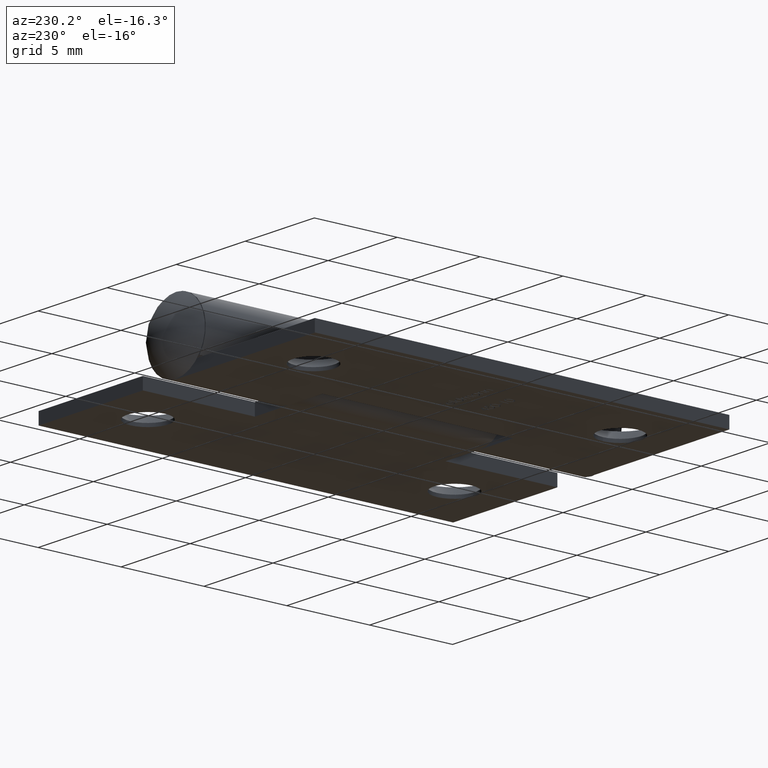
[diagram: clean part render]
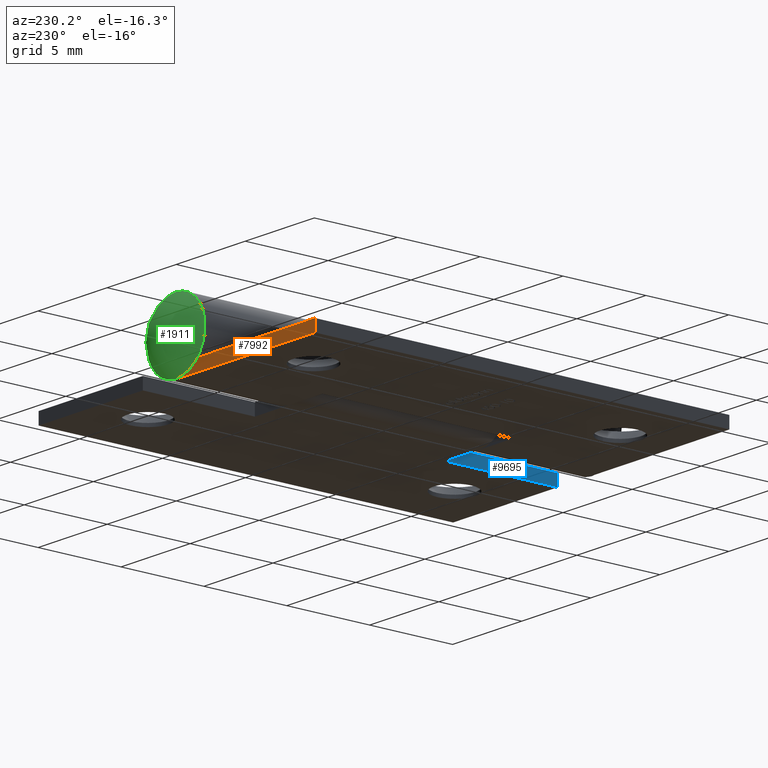
[diagram: same view with three faces highlighted in distinct colors, each labeled with its STEP entity id]
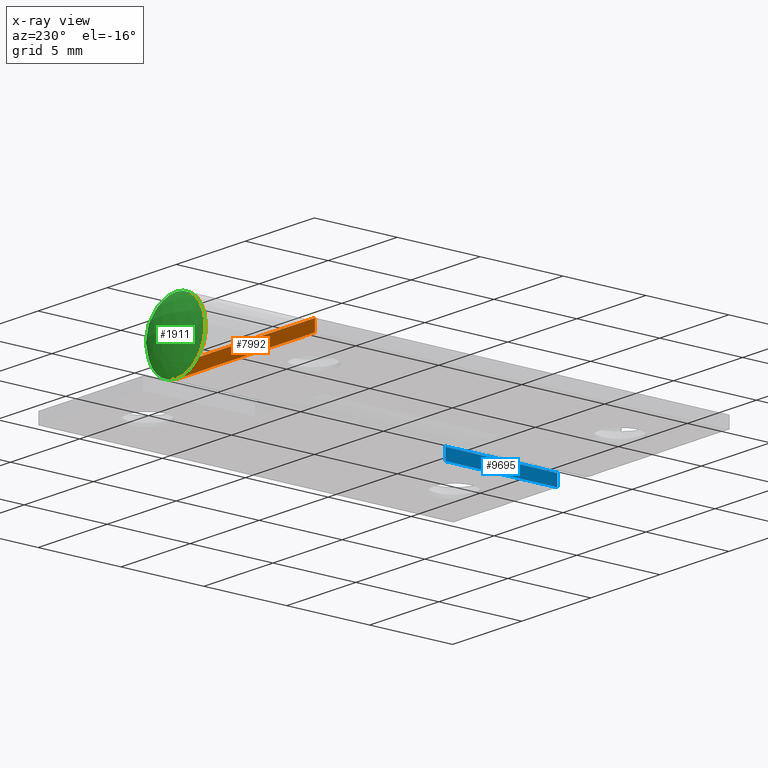
[diagram: x-ray of the same camera — body ghosted, the three highlighted faces saturated]
A machine part, auxiliary view with three faces highlighted in distinct colors.
The next image is the same camera in x-ray (body ghosted, the three faces saturated) — at least one of them is partly hidden behind the body in this view.
Their STEP definitions:

[orange] entity #7992 — the highlighted planar face has unit normal (0, -1, 0).
#172 = CARTESIAN_POINT ( 'NONE',  ( -2.100000000000000089, 12.50000000000000000, 2.100000000000000089 ) ) ;
#218 = EDGE_CURVE ( 'NONE', #9610, #6941, #7690, .T. ) ;
#556 = LINE ( 'NONE', #5144, #7227 ) ;
#561 = CARTESIAN_POINT ( 'NONE',  ( -12.09999999999999964, 12.50000000000000000, 1.301042606982605321E-15 ) ) ;
#818 = FACE_OUTER_BOUND ( 'NONE', #4298, .T. ) ;
#1146 = EDGE_CURVE ( 'NONE', #11207, #7150, #556, .T. ) ;
#1415 = CARTESIAN_POINT ( 'NONE',  ( -2.099999999999999645, 12.50000000000000000, 0.000000000000000000 ) ) ;
#1661 = PLANE ( 'NONE',  #9605 ) ;
#2075 = CARTESIAN_POINT ( 'NONE',  ( -3.199494833498043533, 12.50000000000000000, 1.233333333333334503 ) ) ;
#2119 = VERTEX_POINT ( 'NONE', #1415 ) ;
#2171 = VECTOR ( 'NONE', #8368, 1000.000000000000000 ) ;
#2729 = CARTESIAN_POINT ( 'NONE',  ( -2.100000000000000089, 12.50000000000000000, 2.100000000000000089 ) ) ;
#3378 = ORIENTED_EDGE ( 'NONE', *, *, #5732, .T. ) ;
#3539 = LINE ( 'NONE', #4965, #2171 ) ;
#4284 = CARTESIAN_POINT ( 'NONE',  ( -2.100000000000000089, 12.50000000000000000, 2.100000000000000089 ) ) ;
#4298 = EDGE_LOOP ( 'NONE', ( #3378, #9400, #10169, #4757, #8018, #9122 ) ) ;
#4380 = DIRECTION ( 'NONE',  ( -0.7853534524986016674, -0.000000000000000000, -0.6190476190476195129 ) ) ;
#4478 = EDGE_CURVE ( 'NONE', #2119, #11207, #3539, .T. ) ;
#4569 = DIRECTION ( 'NONE',  ( 0.000000000000000000, 1.000000000000000000, -0.000000000000000000 ) ) ;
#4757 = ORIENTED_EDGE ( 'NONE', *, *, #9205, .T. ) ;
#4839 = CARTESIAN_POINT ( 'NONE',  ( -2.099999999999999645, 12.50000000000000000, 0.7000000000000000666 ) ) ;
#4965 = CARTESIAN_POINT ( 'NONE',  ( -2.099999999999999645, 12.50000000000000000, 0.000000000000000000 ) ) ;
#5037 = LINE ( 'NONE', #4839, #6020 ) ;
#5144 = CARTESIAN_POINT ( 'NONE',  ( -12.09999999999999787, 12.50000000000000000, 0.7000000000000012879 ) ) ;
#5170 = CARTESIAN_POINT ( 'NONE',  ( -3.749242250247063257, 12.50000000000000000, 0.8000000000000001554 ) ) ;
#5211 = DIRECTION ( 'NONE',  ( 2.478176394252581732E-15, -0.000000000000000000, 1.000000000000000000 ) ) ;
#5258 = CARTESIAN_POINT ( 'NONE',  ( -3.749242250247063257, 12.50000000000000000, 0.8000000000000001554 ) ) ;
#5468 = DIRECTION ( 'NONE',  ( 0.000000000000000000, 0.000000000000000000, -1.000000000000000000 ) ) ;
#5732 = EDGE_CURVE ( 'NONE', #6941, #2119, #10917, .T. ) ;
#5912 = CIRCLE ( 'NONE', #7496, 1.399999999999999689 ) ;
#6020 = VECTOR ( 'NONE', #6639, 1000.000000000000000 ) ;
#6639 = DIRECTION ( 'NONE',  ( 1.000000000000000000, -0.000000000000000000, -1.192622389734055124E-16 ) ) ;
#6677 = CARTESIAN_POINT ( 'NONE',  ( -2.099999999999999645, 12.50000000000000000, 0.7000000000000000666 ) ) ;
#6889 = VECTOR ( 'NONE', #4380, 1000.000000000000114 ) ;
#6941 = VERTEX_POINT ( 'NONE', #5170 ) ;
#7130 = DIRECTION ( 'NONE',  ( -0.000000000000000000, -1.000000000000000000, 0.000000000000000000 ) ) ;
#7150 = VERTEX_POINT ( 'NONE', #7304 ) ;
#7227 = VECTOR ( 'NONE', #5211, 1000.000000000000000 ) ;
#7304 = CARTESIAN_POINT ( 'NONE',  ( -12.09999999999999787, 12.50000000000000000, 0.7000000000000012879 ) ) ;
#7496 = AXIS2_PLACEMENT_3D ( 'NONE', #172, #7130, #7889 ) ;
#7586 = EDGE_CURVE ( 'NONE', #9208, #9610, #5912, .T. ) ;
#7690 = LINE ( 'NONE', #5258, #6889 ) ;
#7691 = DIRECTION ( 'NONE',  ( 0.000000000000000000, -1.000000000000000000, 0.000000000000000000 ) ) ;
#7777 = DIRECTION ( 'NONE',  ( 0.000000000000000000, -0.000000000000000000, -1.000000000000000000 ) ) ;
#7889 = DIRECTION ( 'NONE',  ( 0.000000000000000000, 0.000000000000000000, -1.000000000000000000 ) ) ;
#7992 = ADVANCED_FACE ( 'NONE', ( #818 ), #1661, .F. ) ;
#8018 = ORIENTED_EDGE ( 'NONE', *, *, #7586, .T. ) ;
#8368 = DIRECTION ( 'NONE',  ( -1.000000000000000000, 0.000000000000000000, 1.301042606982605321E-16 ) ) ;
#9122 = ORIENTED_EDGE ( 'NONE', *, *, #218, .T. ) ;
#9205 = EDGE_CURVE ( 'NONE', #7150, #9208, #5037, .T. ) ;
#9208 = VERTEX_POINT ( 'NONE', #6677 ) ;
#9400 = ORIENTED_EDGE ( 'NONE', *, *, #4478, .T. ) ;
#9605 = AXIS2_PLACEMENT_3D ( 'NONE', #4284, #7691, #7777 ) ;
#9610 = VERTEX_POINT ( 'NONE', #2075 ) ;
#10169 = ORIENTED_EDGE ( 'NONE', *, *, #1146, .T. ) ;
#10917 = CIRCLE ( 'NONE', #10946, 2.099999999999999645 ) ;
#10946 = AXIS2_PLACEMENT_3D ( 'NONE', #2729, #4569, #5468 ) ;
#11207 = VERTEX_POINT ( 'NONE', #561 ) ;

[blue] entity #9695 — the highlighted planar face has unit normal (1, 0, -0).
#369 = DIRECTION ( 'NONE',  ( -1.301042606982605321E-16, -0.000000000000000000, -1.000000000000000000 ) ) ;
#383 = ORIENTED_EDGE ( 'NONE', *, *, #7093, .F. ) ;
#682 = FACE_OUTER_BOUND ( 'NONE', #5437, .T. ) ;
#1217 = LINE ( 'NONE', #2483, #5587 ) ;
#1226 = LINE ( 'NONE', #10028, #9683 ) ;
#1322 = VERTEX_POINT ( 'NONE', #8472 ) ;
#1799 = LINE ( 'NONE', #4572, #7951 ) ;
#2421 = LINE ( 'NONE', #10615, #3836 ) ;
#2483 = CARTESIAN_POINT ( 'NONE',  ( -4.549999999999999822, 12.50000000000000000, 2.100000000000000089 ) ) ;
#2537 = CARTESIAN_POINT ( 'NONE',  ( -4.549999999999999822, 12.50000000000000000, 0.7000000000000009548 ) ) ;
#2645 = DIRECTION ( 'NONE',  ( -1.301042606982605321E-16, 0.000000000000000000, -1.000000000000000000 ) ) ;
#3107 = VERTEX_POINT ( 'NONE', #2537 ) ;
#3749 = DIRECTION ( 'NONE',  ( -1.000000000000000000, 0.000000000000000000, 1.301042606982605321E-16 ) ) ;
#3836 = VECTOR ( 'NONE', #7904, 1000.000000000000000 ) ;
#3930 = ORIENTED_EDGE ( 'NONE', *, *, #10379, .F. ) ;
#4014 = EDGE_CURVE ( 'NONE', #1322, #10159, #2421, .T. ) ;
#4572 = CARTESIAN_POINT ( 'NONE',  ( -4.549999999999999822, 12.50000000000000000, 0.7000000000000003997 ) ) ;
#5076 = CARTESIAN_POINT ( 'NONE',  ( -4.549999999999999822, 5.750000000000000000, 0.7000000000000000666 ) ) ;
#5422 = DIRECTION ( 'NONE',  ( 1.301042606982605321E-16, 0.000000000000000000, 1.000000000000000000 ) ) ;
#5437 = EDGE_LOOP ( 'NONE', ( #9622, #10188, #3930, #383 ) ) ;
#5587 = VECTOR ( 'NONE', #2645, 1000.000000000000000 ) ;
#6333 = DIRECTION ( 'NONE',  ( 0.000000000000000000, 1.000000000000000000, 0.000000000000000000 ) ) ;
#7093 = EDGE_CURVE ( 'NONE', #8273, #3107, #1799, .T. ) ;
#7146 = CARTESIAN_POINT ( 'NONE',  ( -4.549999999999998934, 12.50000000000000000, 4.200000000000000178 ) ) ;
#7904 = DIRECTION ( 'NONE',  ( -0.000000000000000000, 1.000000000000000000, -0.000000000000000000 ) ) ;
#7951 = VECTOR ( 'NONE', #6333, 1000.000000000000000 ) ;
#8064 = PLANE ( 'NONE',  #8168 ) ;
#8168 = AXIS2_PLACEMENT_3D ( 'NONE', #7146, #3749, #5422 ) ;
#8273 = VERTEX_POINT ( 'NONE', #5076 ) ;
#8472 = CARTESIAN_POINT ( 'NONE',  ( -4.549999999999999822, 5.750000000000000000, 5.919743861770854210E-16 ) ) ;
#9622 = ORIENTED_EDGE ( 'NONE', *, *, #9709, .T. ) ;
#9683 = VECTOR ( 'NONE', #369, 1000.000000000000000 ) ;
#9695 = ADVANCED_FACE ( 'NONE', ( #682 ), #8064, .F. ) ;
#9709 = EDGE_CURVE ( 'NONE', #8273, #1322, #1226, .T. ) ;
#9756 = CARTESIAN_POINT ( 'NONE',  ( -4.549999999999999822, 12.50000000000000000, 3.187554387107384022E-16 ) ) ;
#10028 = CARTESIAN_POINT ( 'NONE',  ( -4.549999999999998934, 5.750000000000000000, 4.200000000000000178 ) ) ;
#10159 = VERTEX_POINT ( 'NONE', #9756 ) ;
#10188 = ORIENTED_EDGE ( 'NONE', *, *, #4014, .T. ) ;
#10379 = EDGE_CURVE ( 'NONE', #3107, #10159, #1217, .T. ) ;
#10615 = CARTESIAN_POINT ( 'NONE',  ( -4.549999999999999822, 12.50000000000000000, 5.919743861770854210E-16 ) ) ;

[green] entity #1911 — the highlighted spherical surface has radius 2.705 mm.
#1911 = ADVANCED_FACE ( 'NONE', ( #7790 ), #4398, .T. ) ;
#2183 = CARTESIAN_POINT ( 'NONE',  ( 0.000000000000000000, 12.55000000000000071, 0.000000000000000000 ) ) ;
#2863 = AXIS2_PLACEMENT_3D ( 'NONE', #4147, #6783, #3333 ) ;
#3110 = CIRCLE ( 'NONE', #5774, 2.100000000000000089 ) ;
#3333 = DIRECTION ( 'NONE',  ( 1.000000000000000000, 0.000000000000000000, 0.000000000000000000 ) ) ;
#4147 = CARTESIAN_POINT ( 'NONE',  ( 0.000000000000000000, 10.84500000000000064, 0.000000000000000000 ) ) ;
#4398 = SPHERICAL_SURFACE ( 'NONE', #2863, 2.705000000000000071 ) ;
#5421 = VERTEX_POINT ( 'NONE', #8616 ) ;
#5740 = EDGE_LOOP ( 'NONE', ( #6411 ) ) ;
#5774 = AXIS2_PLACEMENT_3D ( 'NONE', #2183, #10779, #5894 ) ;
#5894 = DIRECTION ( 'NONE',  ( 0.000000000000000000, 0.000000000000000000, -1.000000000000000000 ) ) ;
#6411 = ORIENTED_EDGE ( 'NONE', *, *, #11128, .F. ) ;
#6783 = DIRECTION ( 'NONE',  ( 0.000000000000000000, 0.000000000000000000, 1.000000000000000000 ) ) ;
#7790 = FACE_OUTER_BOUND ( 'NONE', #5740, .T. ) ;
#8616 = CARTESIAN_POINT ( 'NONE',  ( 0.000000000000000000, 12.55000000000000071, -2.100000000000000089 ) ) ;
#10779 = DIRECTION ( 'NONE',  ( -0.000000000000000000, -1.000000000000000000, -0.000000000000000000 ) ) ;
#11128 = EDGE_CURVE ( 'NONE', #5421, #5421, #3110, .T. ) ;